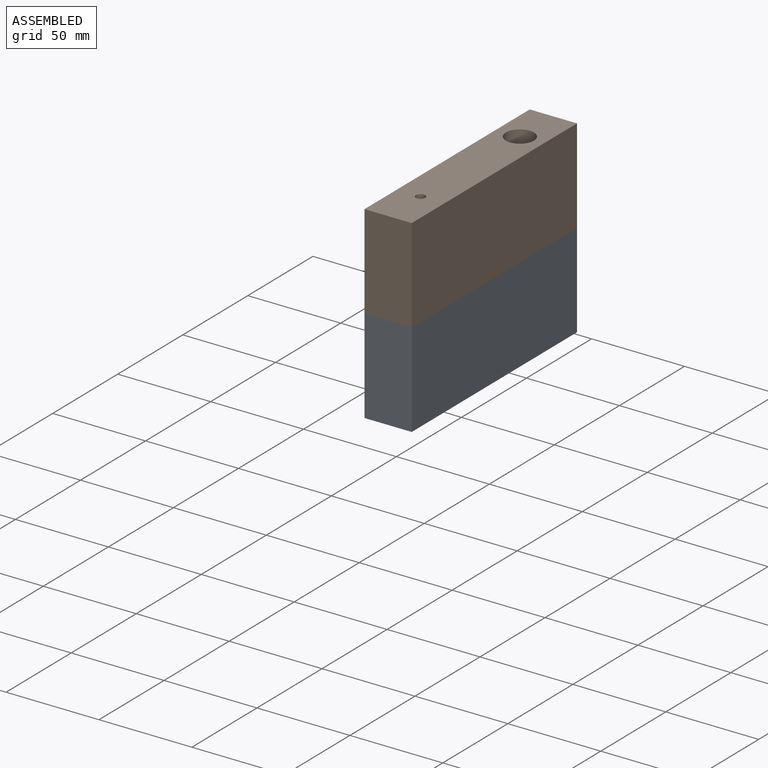
[diagram: assembled view]
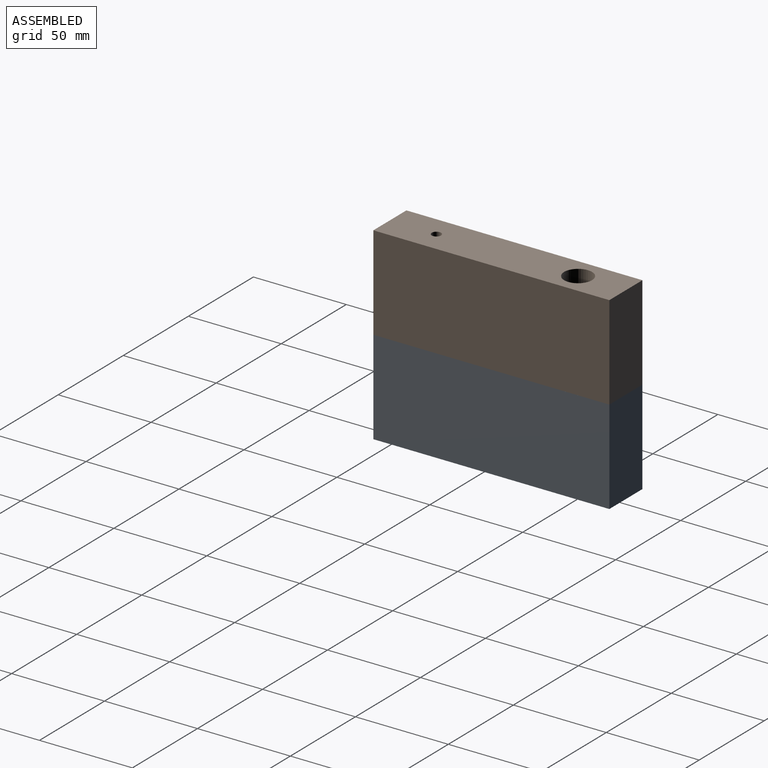
[diagram: assembled view, second angle]
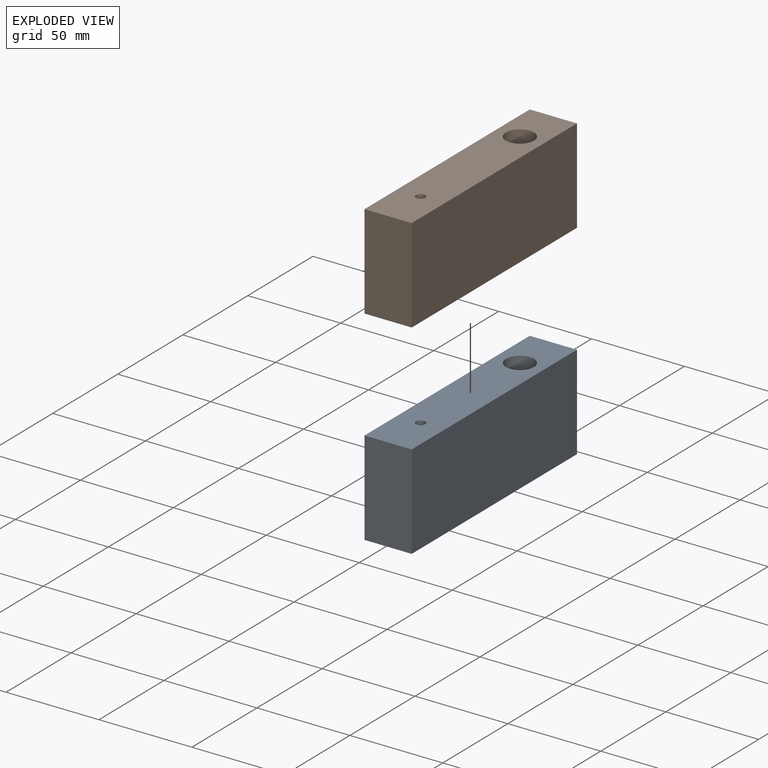
[diagram: exploded view]
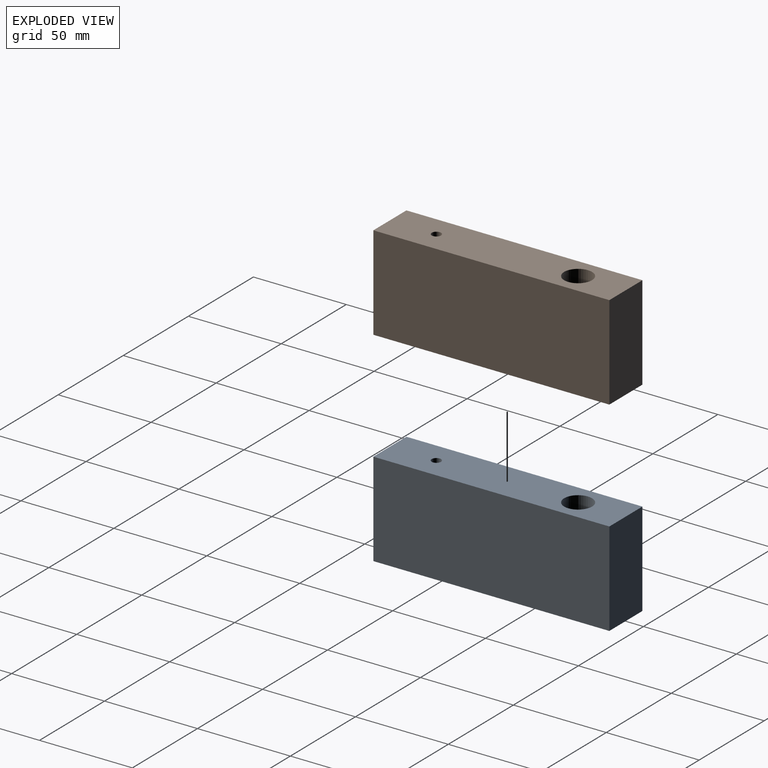
[diagram: exploded view, second angle]
ASSEMBLY  parts=2 mates=3
PART A: 8 faces, bbox 25.4x127x50.8 mm
  f0: plane 50.8x25.4mm, normal (0,1,0), area 1290.3mm2, adj f1,f3,f4,f5
  f1: plane 127x50.8mm, normal (-1,0,0), area 6451.6mm2, adj f0,f2,f4,f5
  f2: plane 50.8x25.4mm, normal (0,-1,0), area 1290.3mm2, adj f1,f3,f4,f5
  f3: plane 127x50.8mm, normal (1,0,0), area 6451.6mm2, adj f0,f2,f4,f5
  f4: plane 127x25.4mm, normal (0,0,1), area 3028mm2, adj f0,f1,f2,f3,f6,f7
  f5: plane 127x25.4mm, normal (0,0,-1), area 3028mm2, adj f0,f1,f2,f3,f6,f7
  f6: cylinder r=2.5mm len=50.8mm, axis (0,0,1), area 798mm2, adj f4,f5
  f7: cylinder r=7.53mm len=50.8mm, axis (0,0,1), area 2403.6mm2, adj f4,f5
PART B: same geometry as A
PLACE A t=(-145.92,79.9,121.01)mm fixed
PLACE B rot(axis=(0,-1,0),180deg) t=(-145.92,79.9,171.81)mm
MATE parallel B.f2 <-> A.f2  axis (0,-1,0) through (-145.92,16.4,171.81)mm
MATE cylindrical A.f7 <-> B.f7  axis (0,0,1) through (-145.92,117.7,146.41)mm
MATE planar A.f7 <-> B.f7  axis (0,0,1) through (-145.92,117.7,146.41)mm
